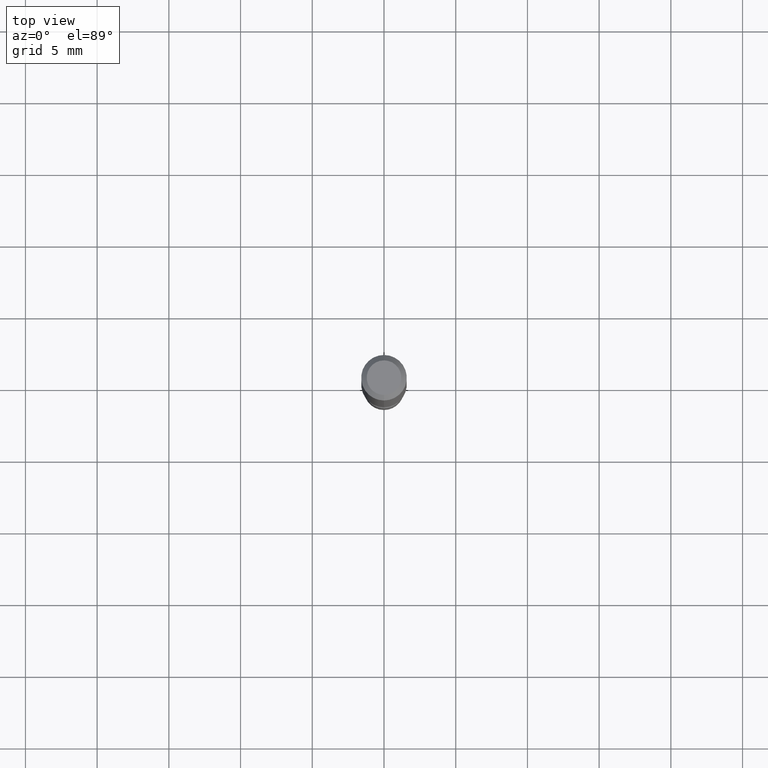
[diagram: clean part render]
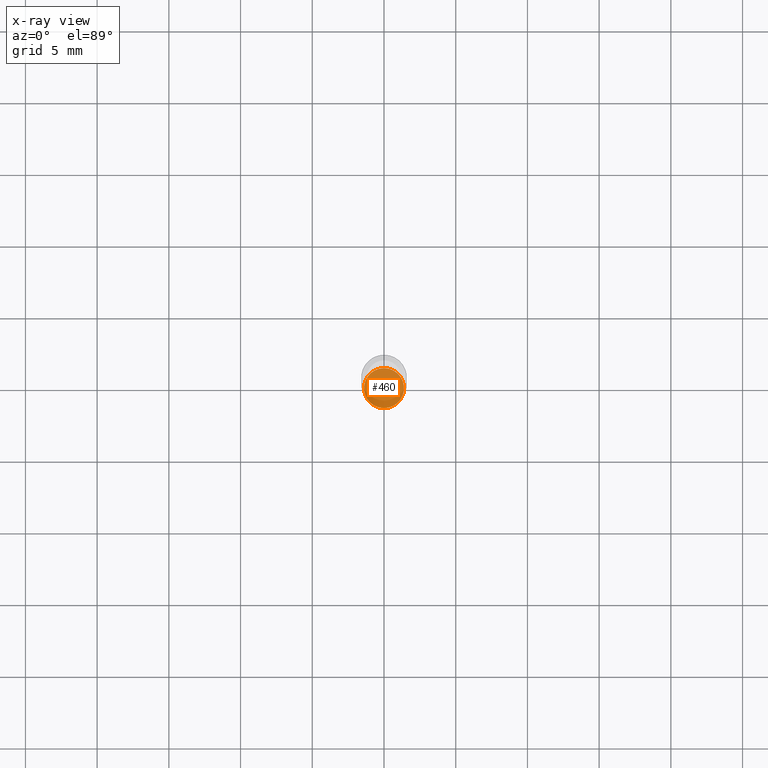
[diagram: x-ray — body ghosted, one internal face saturated and labeled with its STEP entity id]
A machine part, top view, then the same camera in x-ray: the body is ghosted and one INTERNAL B-rep face — a face not visible from any outside direction — is saturated and labeled: STEP entity #460.
In plain terms, the highlighted planar face has unit normal (-0, 0, 1).
Its self-contained STEP definition (entity closure, byte-faithful):
#34 = VERTEX_POINT ( 'NONE', #182 ) ;
#82 = DIRECTION ( 'NONE',  ( -2.445413130264774558E-29, 3.491561069929980790E-15, 1.000000000000000000 ) ) ;
#112 = DIRECTION ( 'NONE',  ( -2.445413130264774278E-29, 3.491561069929980396E-15, 1.000000000000000000 ) ) ;
#167 = CARTESIAN_POINT ( 'NONE',  ( 3.907985046680961743E-16, 0.05499999999999421324, -1.670000000000000151 ) ) ;
#174 = CARTESIAN_POINT ( 'NONE',  ( 4.083839927542173003E-29, -5.830906986783067502E-15, -1.669999999999999929 ) ) ;
#182 = CARTESIAN_POINT ( 'NONE',  ( -3.840629472727041611E-16, -0.05500000000000587752, -1.669999999999999707 ) ) ;
#222 = DIRECTION ( 'NONE',  ( -6.982962677686266711E-15, -1.000000000000000000, 4.966996352116842287E-15 ) ) ;
#256 = CIRCLE ( 'NONE', #364, 0.05500000000000000028 ) ;
#264 = EDGE_CURVE ( 'NONE', #34, #301, #256, .T. ) ;
#266 = DIRECTION ( 'NONE',  ( -2.445413130264774558E-29, 3.491561069929980790E-15, 1.000000000000000000 ) ) ;
#301 = VERTEX_POINT ( 'NONE', #167 ) ;
#314 = DIRECTION ( 'NONE',  ( -6.982962677686266711E-15, -1.000000000000000000, 4.966996352116842287E-15 ) ) ;
#336 = AXIS2_PLACEMENT_3D ( 'NONE', #429, #112, #478 ) ;
#339 = EDGE_LOOP ( 'NONE', ( #421, #512 ) ) ;
#349 = CIRCLE ( 'NONE', #391, 0.05500000000000000028 ) ;
#364 = AXIS2_PLACEMENT_3D ( 'NONE', #377, #266, #222 ) ;
#377 = CARTESIAN_POINT ( 'NONE',  ( 4.083839927542173003E-29, -5.830906986783067502E-15, -1.669999999999999929 ) ) ;
#391 = AXIS2_PLACEMENT_3D ( 'NONE', #174, #82, #314 ) ;
#421 = ORIENTED_EDGE ( 'NONE', *, *, #264, .F. ) ;
#429 = CARTESIAN_POINT ( 'NONE',  ( 3.840629472727855124E-16, 0.05499999999999417161, -1.670000000000000151 ) ) ;
#447 = EDGE_CURVE ( 'NONE', #301, #34, #349, .T. ) ;
#460 = ADVANCED_FACE ( 'NONE', ( #525 ), #505, .F. ) ;
#478 = DIRECTION ( 'NONE',  ( -6.982962677686265922E-15, -1.000000000000000000, 3.491561069929980396E-15 ) ) ;
#505 = PLANE ( 'NONE',  #336 ) ;
#512 = ORIENTED_EDGE ( 'NONE', *, *, #447, .F. ) ;
#525 = FACE_OUTER_BOUND ( 'NONE', #339, .T. ) ;